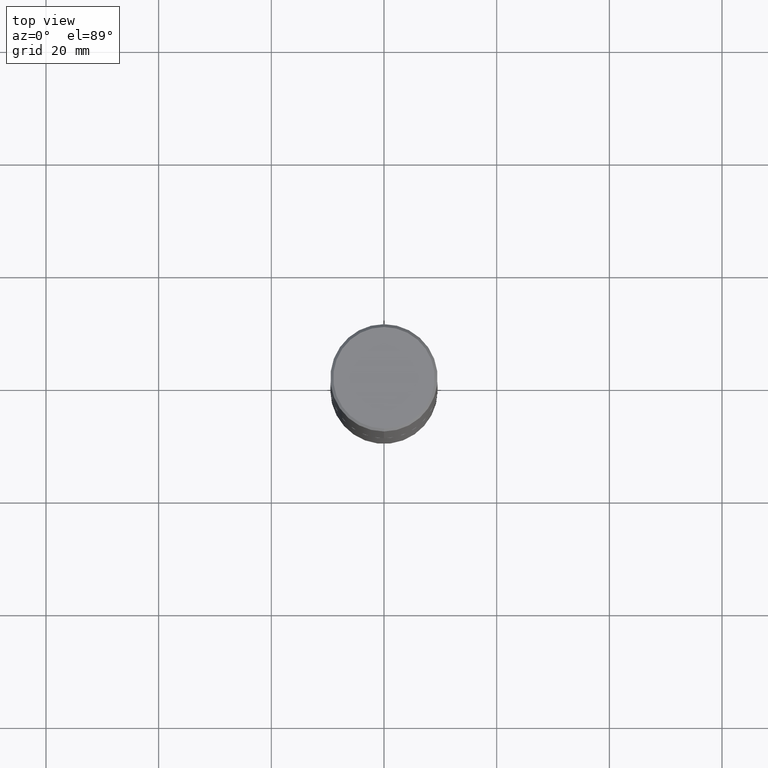
[diagram: clean part render]
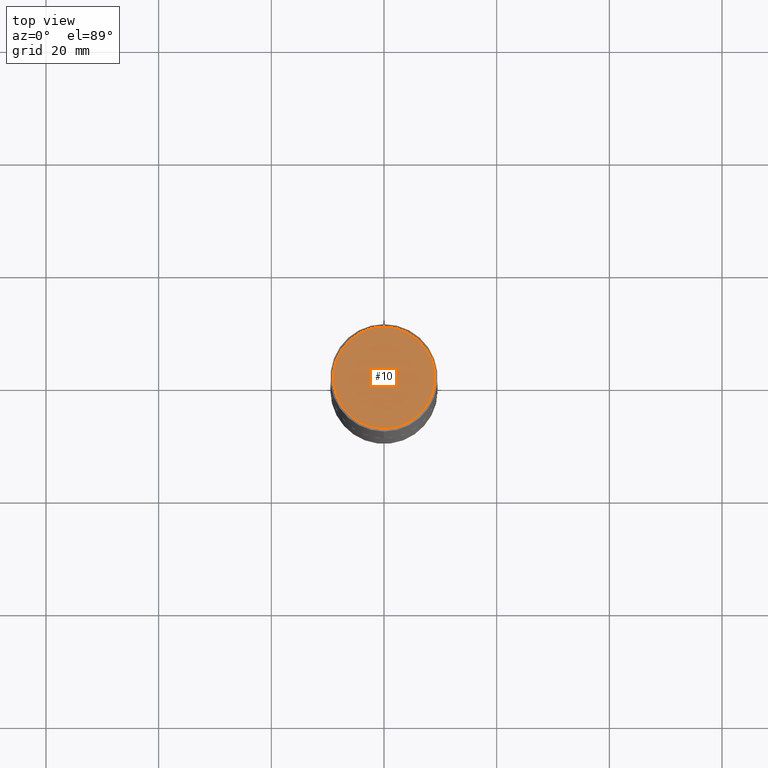
[diagram: same view with one face highlighted and labeled with its STEP entity id]
A machine part, top view. The second image highlights one B-rep face of the part: STEP entity #10.
In plain terms, the highlighted planar face has unit normal (0, -0, -1).
Its self-contained STEP definition (entity closure, byte-faithful):
#1 = AXIS2_PLACEMENT_3D ( 'NONE', #70, #113, #350 ) ;
#10 = ADVANCED_FACE ( 'NONE', ( #359 ), #197, .F. ) ;
#50 = ORIENTED_EDGE ( 'NONE', *, *, #390, .T. ) ;
#70 = CARTESIAN_POINT ( 'NONE',  ( -1.141397163745304909E-45, 1.628849886601155835E-31, 4.666305460853910467E-17 ) ) ;
#76 = CARTESIAN_POINT ( 'NONE',  ( -2.504081769186608216E-15, -0.3549999999999999822, 1.285848347115290366E-15 ) ) ;
#100 = CIRCLE ( 'NONE', #1, 0.3549999999999999822 ) ;
#113 = DIRECTION ( 'NONE',  ( -2.446040391741596606E-29, 3.490662795793665557E-15, 1.000000000000000000 ) ) ;
#123 = VERTEX_POINT ( 'NONE', #414 ) ;
#146 = ORIENTED_EDGE ( 'NONE', *, *, #417, .T. ) ;
#189 = AXIS2_PLACEMENT_3D ( 'NONE', #283, #400, #213 ) ;
#197 = PLANE ( 'NONE',  #295 ) ;
#213 = DIRECTION ( 'NONE',  ( -6.982962677686265922E-15, -1.000000000000000000, 3.490662795793665557E-15 ) ) ;
#251 = DIRECTION ( 'NONE',  ( 6.982962677686265922E-15, 1.000000000000000000, -3.490662795793665557E-15 ) ) ;
#261 = CIRCLE ( 'NONE', #189, 0.3549999999999999822 ) ;
#283 = CARTESIAN_POINT ( 'NONE',  ( -1.141397163745304909E-45, 1.628849886601155835E-31, 4.666305460853910467E-17 ) ) ;
#293 = EDGE_LOOP ( 'NONE', ( #146, #50 ) ) ;
#295 = AXIS2_PLACEMENT_3D ( 'NONE', #406, #334, #251 ) ;
#334 = DIRECTION ( 'NONE',  ( 2.446040391741596045E-29, -3.490662795793665557E-15, -1.000000000000000000 ) ) ;
#350 = DIRECTION ( 'NONE',  ( -6.982962677686265922E-15, -1.000000000000000000, 3.490662795793665557E-15 ) ) ;
#359 = FACE_OUTER_BOUND ( 'NONE', #293, .T. ) ;
#384 = VERTEX_POINT ( 'NONE', #76 ) ;
#390 = EDGE_CURVE ( 'NONE', #384, #123, #261, .T. ) ;
#400 = DIRECTION ( 'NONE',  ( -2.446040391741596606E-29, 3.490662795793665557E-15, 1.000000000000000000 ) ) ;
#406 = CARTESIAN_POINT ( 'NONE',  ( 2.478951750578624209E-15, 0.3549999999999999822, -1.215853765202481601E-15 ) ) ;
#414 = CARTESIAN_POINT ( 'NONE',  ( 2.548781377355487113E-15, 0.3549999999999999822, -1.192522237898212341E-15 ) ) ;
#417 = EDGE_CURVE ( 'NONE', #123, #384, #100, .T. ) ;